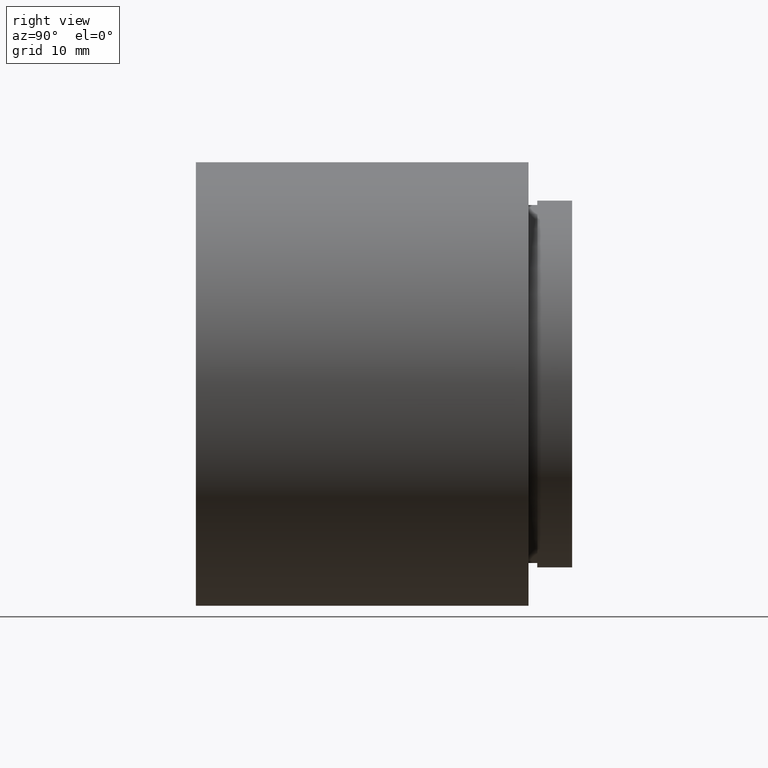
[diagram: clean part render]
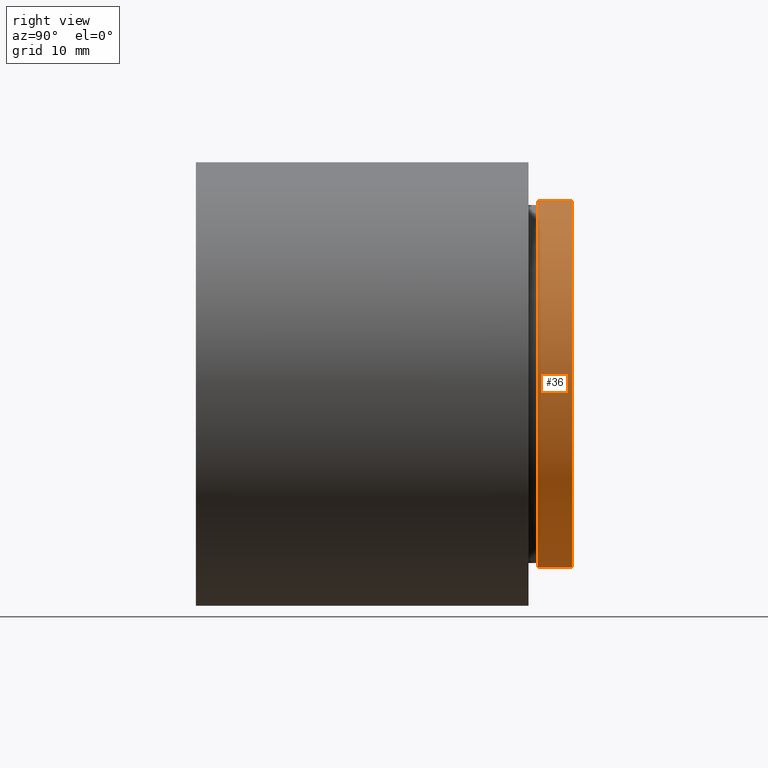
[diagram: same view with one face highlighted and labeled with its STEP entity id]
A machine part, right view. The second image highlights one B-rep face of the part: STEP entity #36.
In plain terms, the highlighted cylindrical surface (partial cylindrical patch) has radius 21 mm, axis along (-0, 1, -0).
Its self-contained STEP definition (entity closure, byte-faithful):
#36 = ADVANCED_FACE ( 'NONE', ( #608 ), #246, .T. ) ;
#69 = ORIENTED_EDGE ( 'NONE', *, *, #459, .F. ) ;
#71 = CARTESIAN_POINT ( 'NONE',  ( 0.0000000000000000000, 39.09999999999998000, 21.00000000000001800 ) ) ;
#98 = CARTESIAN_POINT ( 'NONE',  ( 0.0000000000000000000, 43.09999999999998700, 21.00000000000001400 ) ) ;
#138 = EDGE_CURVE ( 'NONE', #536, #419, #371, .T. ) ;
#147 = VECTOR ( 'NONE', #427, 1000.000000000000000 ) ;
#149 = DIRECTION ( 'NONE',  ( -0.0000000000000000000, 1.000000000000000000, -0.0000000000000000000 ) ) ;
#163 = DIRECTION ( 'NONE',  ( -0.0000000000000000000, 1.000000000000000000, -0.0000000000000000000 ) ) ;
#198 = CARTESIAN_POINT ( 'NONE',  ( 0.0000000000000000000, 39.09999999999998000, 0.0000000000000000000 ) ) ;
#211 = DIRECTION ( 'NONE',  ( 0.0000000000000000000, 0.0000000000000000000, 1.000000000000000000 ) ) ;
#212 = EDGE_LOOP ( 'NONE', ( #382, #221, #69, #580 ) ) ;
#221 = ORIENTED_EDGE ( 'NONE', *, *, #138, .T. ) ;
#240 = DIRECTION ( 'NONE',  ( 0.0000000000000000000, 0.0000000000000000000, 1.000000000000000000 ) ) ;
#246 = CYLINDRICAL_SURFACE ( 'NONE', #350, 21.00000000000001800 ) ;
#283 = EDGE_CURVE ( 'NONE', #524, #536, #369, .T. ) ;
#311 = CARTESIAN_POINT ( 'NONE',  ( 0.0000000000000000000, 161.3761669434274500, 21.00000000000001800 ) ) ;
#328 = CARTESIAN_POINT ( 'NONE',  ( 0.0000000000000000000, 161.3761669434274500, 0.0000000000000000000 ) ) ;
#330 = DIRECTION ( 'NONE',  ( 0.0000000000000000000, 0.0000000000000000000, 1.000000000000000000 ) ) ;
#335 = CIRCLE ( 'NONE', #547, 21.00000000000001400 ) ;
#345 = VERTEX_POINT ( 'NONE', #98 ) ;
#350 = AXIS2_PLACEMENT_3D ( 'NONE', #328, #424, #330 ) ;
#369 = CIRCLE ( 'NONE', #450, 21.00000000000001800 ) ;
#371 = LINE ( 'NONE', #520, #147 ) ;
#382 = ORIENTED_EDGE ( 'NONE', *, *, #283, .T. ) ;
#419 = VERTEX_POINT ( 'NONE', #453 ) ;
#424 = DIRECTION ( 'NONE',  ( -0.0000000000000000000, 1.000000000000000000, -0.0000000000000000000 ) ) ;
#427 = DIRECTION ( 'NONE',  ( -0.0000000000000000000, 1.000000000000000000, -0.0000000000000000000 ) ) ;
#450 = AXIS2_PLACEMENT_3D ( 'NONE', #198, #149, #240 ) ;
#453 = CARTESIAN_POINT ( 'NONE',  ( 2.571758278209443600E-015, 43.09999999999998700, -21.00000000000001400 ) ) ;
#457 = CARTESIAN_POINT ( 'NONE',  ( 0.0000000000000000000, 43.09999999999998700, 0.0000000000000000000 ) ) ;
#459 = EDGE_CURVE ( 'NONE', #345, #419, #335, .T. ) ;
#485 = EDGE_CURVE ( 'NONE', #524, #345, #504, .T. ) ;
#504 = LINE ( 'NONE', #311, #602 ) ;
#520 = CARTESIAN_POINT ( 'NONE',  ( 2.571758278209444000E-015, 161.3761669434274500, -21.00000000000001800 ) ) ;
#524 = VERTEX_POINT ( 'NONE', #71 ) ;
#536 = VERTEX_POINT ( 'NONE', #568 ) ;
#547 = AXIS2_PLACEMENT_3D ( 'NONE', #457, #163, #211 ) ;
#563 = DIRECTION ( 'NONE',  ( -0.0000000000000000000, 1.000000000000000000, -0.0000000000000000000 ) ) ;
#568 = CARTESIAN_POINT ( 'NONE',  ( 2.571758278209444000E-015, 39.09999999999998000, -21.00000000000001800 ) ) ;
#580 = ORIENTED_EDGE ( 'NONE', *, *, #485, .F. ) ;
#602 = VECTOR ( 'NONE', #563, 1000.000000000000000 ) ;
#608 = FACE_OUTER_BOUND ( 'NONE', #212, .T. ) ;